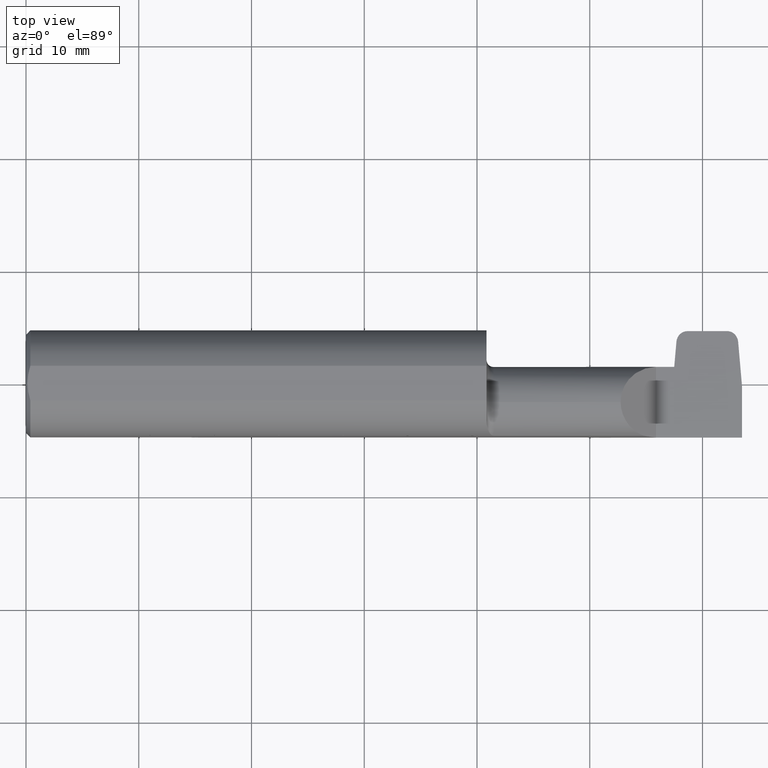
[diagram: clean part render]
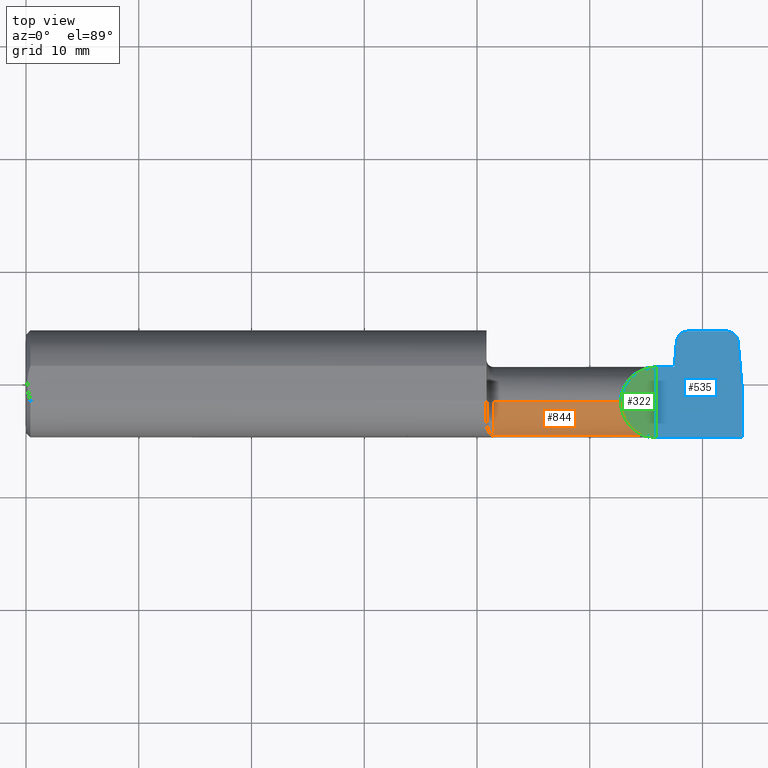
[diagram: same view with three faces highlighted in distinct colors, each labeled with its STEP entity id]
A machine part, top view with three faces highlighted in distinct colors.
Their STEP definitions:

[orange] entity #844 — the highlighted cylindrical surface (edge-blend (fillet) strip) has radius 3.175 mm, axis along (-1, -0, -0).
#13 = DIRECTION ( 'NONE',  ( -1.000000000000000000, -0.000000000000000000, -0.000000000000000000 ) ) ;
#14 = DIRECTION ( 'NONE',  ( 1.000000000000000000, 0.000000000000000000, 0.000000000000000000 ) ) ;
#79 = EDGE_CURVE ( 'NONE', #342, #532, #719, .T. ) ;
#118 = AXIS2_PLACEMENT_3D ( 'NONE', #388, #848, #161 ) ;
#125 = DIRECTION ( 'NONE',  ( 0.000000000000000000, 0.000000000000000000, -1.000000000000000000 ) ) ;
#144 = EDGE_CURVE ( 'NONE', #336, #214, #546, .T. ) ;
#159 = AXIS2_PLACEMENT_3D ( 'NONE', #596, #441, #125 ) ;
#161 = DIRECTION ( 'NONE',  ( 0.000000000000000000, 0.000000000000000000, 1.000000000000000000 ) ) ;
#214 = VERTEX_POINT ( 'NONE', #613 ) ;
#229 = FACE_OUTER_BOUND ( 'NONE', #621, .T. ) ;
#257 = CARTESIAN_POINT ( 'NONE',  ( 1.607999999999999874, -0.06535000000000003306, 0.1249999999999999584 ) ) ;
#326 = ORIENTED_EDGE ( 'NONE', *, *, #79, .T. ) ;
#336 = VERTEX_POINT ( 'NONE', #399 ) ;
#342 = VERTEX_POINT ( 'NONE', #484 ) ;
#351 = CARTESIAN_POINT ( 'NONE',  ( 1.632999999999999785, -0.1816805279265493456, 0.04574066322573741572 ) ) ;
#354 = ORIENTED_EDGE ( 'NONE', *, *, #891, .T. ) ;
#369 = EDGE_CURVE ( 'NONE', #532, #214, #401, .T. ) ;
#387 = CARTESIAN_POINT ( 'NONE',  ( 2.106227264736975080, -0.1622637096011580737, 0.09512273526302454651 ) ) ;
#388 = CARTESIAN_POINT ( 'NONE',  ( 1.607999999999999874, -0.06535000000000003306, 0.000000000000000000 ) ) ;
#389 = ORIENTED_EDGE ( 'NONE', *, *, #144, .F. ) ;
#399 = CARTESIAN_POINT ( 'NONE',  ( 2.076349999999999252, -0.06535000000000003306, 0.1249999999999999584 ) ) ;
#401 = LINE ( 'NONE', #712, #880 ) ;
#441 = DIRECTION ( 'NONE',  ( 1.000000000000000000, 0.000000000000000000, 0.000000000000000000 ) ) ;
#475 = VECTOR ( 'NONE', #13, 39.37007874015748143 ) ;
#484 = CARTESIAN_POINT ( 'NONE',  ( 1.632999999999999785, -0.06535000000000003306, 0.1249999999999999584 ) ) ;
#490 = LINE ( 'NONE', #257, #475 ) ;
#532 = VERTEX_POINT ( 'NONE', #351 ) ;
#537 = CYLINDRICAL_SURFACE ( 'NONE', #118, 0.1249999999999999584 ) ;
#546 =( BOUNDED_CURVE ( )  B_SPLINE_CURVE ( 3, ( #841, #923, #387, #680 ),
 .UNSPECIFIED., .F., .T. ) 
 B_SPLINE_CURVE_WITH_KNOTS ( ( 4, 4 ),
 ( 0.000000000000000000, 1.196169454089148321 ),
 .UNSPECIFIED. ) 
 CURVE ( )  GEOMETRIC_REPRESENTATION_ITEM ( )  RATIONAL_B_SPLINE_CURVE ( ( 1.000000000000000000, 0.8842770299537372480, 0.8842770299537372480, 1.000000000000000000 ) ) 
 REPRESENTATION_ITEM ( '' )  );
#547 = ORIENTED_EDGE ( 'NONE', *, *, #369, .T. ) ;
#596 = CARTESIAN_POINT ( 'NONE',  ( 1.632999999999999785, -0.06535000000000003306, 0.000000000000000000 ) ) ;
#613 = CARTESIAN_POINT ( 'NONE',  ( 2.155609336774261919, -0.1816805279265492068, 0.04574066322573761001 ) ) ;
#621 = EDGE_LOOP ( 'NONE', ( #389, #354, #326, #547 ) ) ;
#680 = CARTESIAN_POINT ( 'NONE',  ( 2.155609336774261919, -0.1816805279265492068, 0.04574066322573761001 ) ) ;
#712 = CARTESIAN_POINT ( 'NONE',  ( 1.935500000000000220, -0.1816805279265493456, 0.04574066322573741572 ) ) ;
#719 = CIRCLE ( 'NONE', #159, 0.1249999999999999584 ) ;
#841 = CARTESIAN_POINT ( 'NONE',  ( 2.076349999999999252, -0.06535000000000003306, 0.1249999999999999584 ) ) ;
#844 = ADVANCED_FACE ( 'NONE', ( #229 ), #537, .T. ) ;
#848 = DIRECTION ( 'NONE',  ( -1.000000000000000000, -0.000000000000000000, -0.000000000000000000 ) ) ;
#880 = VECTOR ( 'NONE', #14, 39.37007874015748143 ) ;
#891 = EDGE_CURVE ( 'NONE', #336, #342, #490, .T. ) ;
#923 = CARTESIAN_POINT ( 'NONE',  ( 2.076349999999999252, -0.1184122452651323182, 0.1250000000000000000 ) ) ;

[blue] entity #535 — the highlighted planar face has unit normal (-0, 0, -1).
#4 = EDGE_CURVE ( 'NONE', #607, #44, #817, .T. ) ;
#15 = VERTEX_POINT ( 'NONE', #669 ) ;
#19 = VECTOR ( 'NONE', #232, 39.37007874015748143 ) ;
#44 = VERTEX_POINT ( 'NONE', #204 ) ;
#45 = DIRECTION ( 'NONE',  ( -0.000000000000000000, 0.000000000000000000, -1.000000000000000000 ) ) ;
#57 = CARTESIAN_POINT ( 'NONE',  ( 2.447774584507903306, 0.1846500000000000086, -3.979970649922726459E-17 ) ) ;
#67 = CARTESIAN_POINT ( 'NONE',  ( 2.262441070989336112, 0.05964999999999992530, 0.000000000000000000 ) ) ;
#84 = CARTESIAN_POINT ( 'NONE',  ( 2.447774584507903306, 0.1846500000000000086, -3.979970649922726459E-17 ) ) ;
#88 =( BOUNDED_CURVE ( )  B_SPLINE_CURVE ( 3, ( #729, #211, #983, #127 ),
 .UNSPECIFIED., .F., .F. ) 
 B_SPLINE_CURVE_WITH_KNOTS ( ( 4, 4 ),
 ( 6.013479987146139294, 7.464055041535657686 ),
 .UNSPECIFIED. ) 
 CURVE ( )  GEOMETRIC_REPRESENTATION_ITEM ( )  RATIONAL_B_SPLINE_CURVE ( ( 1.000000000000000000, 0.8322058143701920319, 0.8322058143701920319, 1.000000000000000000 ) ) 
 REPRESENTATION_ITEM ( '' )  );
#102 = EDGE_CURVE ( 'NONE', #207, #642, #823, .T. ) ;
#114 = VERTEX_POINT ( 'NONE', #221 ) ;
#119 = CARTESIAN_POINT ( 'NONE',  ( 2.263441070989336446, 0.05964999999999993918, 0.000000000000000000 ) ) ;
#127 = CARTESIAN_POINT ( 'NONE',  ( 2.271138819222131566, 0.1476356649143464872, 0.000000000000000000 ) ) ;
#163 = CARTESIAN_POINT ( 'NONE',  ( 2.200000000000000178, 0.05964999999999993918, -3.979970649922726459E-17 ) ) ;
#169 = AXIS2_PLACEMENT_3D ( 'NONE', #277, #45, #202 ) ;
#171 = VECTOR ( 'NONE', #884, 39.37007874015748143 ) ;
#187 = EDGE_LOOP ( 'NONE', ( #925, #779, #509, #957, #433, #752, #730, #722, #624, #794 ) ) ;
#189 = DIRECTION ( 'NONE',  ( -0.000000000000000000, 1.000000000000000000, -0.000000000000000000 ) ) ;
#202 = DIRECTION ( 'NONE',  ( -1.000000000000000000, 0.000000000000000000, 0.000000000000000000 ) ) ;
#204 = CARTESIAN_POINT ( 'NONE',  ( 2.271138819222131566, 0.1476356649143464872, 0.000000000000000000 ) ) ;
#207 = VERTEX_POINT ( 'NONE', #57 ) ;
#208 = CARTESIAN_POINT ( 'NONE',  ( 2.200000000000000178, 0.2000000000000000111, -3.979970649922726459E-17 ) ) ;
#211 = CARTESIAN_POINT ( 'NONE',  ( 2.288637476239534951, 0.1846499999999999808, -3.414809992080329023E-17 ) ) ;
#221 = CARTESIAN_POINT ( 'NONE',  ( 2.262441070989336112, 0.05964999999999992530, 0.000000000000000000 ) ) ;
#222 = VECTOR ( 'NONE', #781, 39.37007874015748854 ) ;
#232 = DIRECTION ( 'NONE',  ( 1.000000000000000000, 8.537024980200214395E-15, 0.000000000000000000 ) ) ;
#233 = LINE ( 'NONE', #927, #222 ) ;
#242 = CARTESIAN_POINT ( 'NONE',  ( 2.500000000000000000, -0.1873499999999999610, -3.979970649922724610E-17 ) ) ;
#246 = EDGE_CURVE ( 'NONE', #114, #607, #457, .T. ) ;
#256 = VERTEX_POINT ( 'NONE', #851 ) ;
#277 = CARTESIAN_POINT ( 'NONE',  ( 2.200000000000000178, 0.2000000000000000111, -3.979970649922726459E-17 ) ) ;
#281 = DIRECTION ( 'NONE',  ( -0.000000000000000000, 1.000000000000000000, -0.000000000000000000 ) ) ;
#291 = EDGE_CURVE ( 'NONE', #845, #373, #800, .T. ) ;
#313 = VERTEX_POINT ( 'NONE', #163 ) ;
#323 = EDGE_CURVE ( 'NONE', #256, #207, #760, .T. ) ;
#325 = CARTESIAN_POINT ( 'NONE',  ( 2.200000000000000178, -0.1873499999999999888, -3.979970649922726459E-17 ) ) ;
#373 = VERTEX_POINT ( 'NONE', #325 ) ;
#397 = EDGE_CURVE ( 'NONE', #373, #313, #583, .T. ) ;
#415 = DIRECTION ( 'NONE',  ( -1.000000000000000000, 0.000000000000000000, 0.000000000000000000 ) ) ;
#433 = ORIENTED_EDGE ( 'NONE', *, *, #711, .F. ) ;
#457 = LINE ( 'NONE', #67, #19 ) ;
#462 = VECTOR ( 'NONE', #189, 39.37007874015748143 ) ;
#508 = CARTESIAN_POINT ( 'NONE',  ( 1.607999999999999874, 0.05964999999999991837, -3.979970649922724610E-17 ) ) ;
#509 = ORIENTED_EDGE ( 'NONE', *, *, #4, .F. ) ;
#515 = LINE ( 'NONE', #508, #819 ) ;
#521 = CARTESIAN_POINT ( 'NONE',  ( 2.263441070989336446, 0.05964999999999993918, 0.000000000000000000 ) ) ;
#535 = ADVANCED_FACE ( 'NONE', ( #664 ), #974, .F. ) ;
#572 = LINE ( 'NONE', #898, #462 ) ;
#583 = LINE ( 'NONE', #208, #593 ) ;
#591 = DIRECTION ( 'NONE',  ( 1.000000000000000000, 0.000000000000000000, 0.000000000000000000 ) ) ;
#593 = VECTOR ( 'NONE', #281, 39.37007874015748143 ) ;
#607 = VERTEX_POINT ( 'NONE', #521 ) ;
#624 = ORIENTED_EDGE ( 'NONE', *, *, #762, .F. ) ;
#629 = CARTESIAN_POINT ( 'NONE',  ( 2.484674242804016053, 0.1698242063295300752, -3.414809992080329023E-17 ) ) ;
#642 = VERTEX_POINT ( 'NONE', #904 ) ;
#656 = VECTOR ( 'NONE', #415, 39.37007874015748143 ) ;
#664 = FACE_OUTER_BOUND ( 'NONE', #187, .T. ) ;
#669 = CARTESIAN_POINT ( 'NONE',  ( 2.500000000000000000, -0.005350000000000019670, 0.000000000000000000 ) ) ;
#681 = EDGE_CURVE ( 'NONE', #642, #44, #88, .T. ) ;
#707 = CARTESIAN_POINT ( 'NONE',  ( 2.486615488638019844, 0.1476356649143465150, 0.000000000000000000 ) ) ;
#711 = EDGE_CURVE ( 'NONE', #313, #114, #515, .T. ) ;
#722 = ORIENTED_EDGE ( 'NONE', *, *, #755, .T. ) ;
#729 = CARTESIAN_POINT ( 'NONE',  ( 2.309979723352248548, 0.1846500000000000086, -3.979970649922726459E-17 ) ) ;
#730 = ORIENTED_EDGE ( 'NONE', *, *, #291, .F. ) ;
#752 = ORIENTED_EDGE ( 'NONE', *, *, #397, .F. ) ;
#755 = EDGE_CURVE ( 'NONE', #845, #15, #572, .T. ) ;
#760 =( BOUNDED_CURVE ( )  B_SPLINE_CURVE ( 3, ( #707, #629, #786, #84 ),
 .UNSPECIFIED., .F., .F. ) 
 B_SPLINE_CURVE_WITH_KNOTS ( ( 4, 4 ),
 ( 1.960722919233722328, 3.411297973623239166 ),
 .UNSPECIFIED. ) 
 CURVE ( )  GEOMETRIC_REPRESENTATION_ITEM ( )  RATIONAL_B_SPLINE_CURVE ( ( 1.000000000000000000, 0.8322058143701923649, 0.8322058143701923649, 1.000000000000000000 ) ) 
 REPRESENTATION_ITEM ( '' )  );
#762 = EDGE_CURVE ( 'NONE', #256, #15, #233, .T. ) ;
#779 = ORIENTED_EDGE ( 'NONE', *, *, #681, .T. ) ;
#781 = DIRECTION ( 'NONE',  ( 0.08715574274765187923, -0.9961946980917459893, 0.000000000000000000 ) ) ;
#786 = CARTESIAN_POINT ( 'NONE',  ( 2.469116831620616903, 0.1846499999999999808, -3.414809992080329023E-17 ) ) ;
#794 = ORIENTED_EDGE ( 'NONE', *, *, #323, .T. ) ;
#800 = LINE ( 'NONE', #242, #984 ) ;
#817 = LINE ( 'NONE', #119, #171 ) ;
#819 = VECTOR ( 'NONE', #591, 39.37007874015748143 ) ;
#823 = LINE ( 'NONE', #907, #656 ) ;
#845 = VERTEX_POINT ( 'NONE', #924 ) ;
#851 = CARTESIAN_POINT ( 'NONE',  ( 2.486615488638019844, 0.1476356649143465150, 0.000000000000000000 ) ) ;
#872 = DIRECTION ( 'NONE',  ( -1.000000000000000000, -0.000000000000000000, -0.000000000000000000 ) ) ;
#884 = DIRECTION ( 'NONE',  ( 0.08715574274765035268, 0.9961946980917462113, 0.000000000000000000 ) ) ;
#898 = CARTESIAN_POINT ( 'NONE',  ( 2.500000000000000000, 0.2000000000000000111, -3.979970649922726459E-17 ) ) ;
#904 = CARTESIAN_POINT ( 'NONE',  ( 2.309979723352248548, 0.1846500000000000086, -3.979970649922726459E-17 ) ) ;
#907 = CARTESIAN_POINT ( 'NONE',  ( 2.200000000000000178, 0.1846500000000000086, -3.979970649922726459E-17 ) ) ;
#924 = CARTESIAN_POINT ( 'NONE',  ( 2.500000000000000000, -0.1873500000000000165, -3.979970649922726459E-17 ) ) ;
#925 = ORIENTED_EDGE ( 'NONE', *, *, #102, .T. ) ;
#927 = CARTESIAN_POINT ( 'NONE',  ( 2.483377153930075742, 0.1846499999999999808, 0.000000000000000000 ) ) ;
#957 = ORIENTED_EDGE ( 'NONE', *, *, #246, .F. ) ;
#974 = PLANE ( 'NONE',  #169 ) ;
#983 = CARTESIAN_POINT ( 'NONE',  ( 2.273080065056135357, 0.1698242063295300475, -3.414809992080329023E-17 ) ) ;
#984 = VECTOR ( 'NONE', #872, 39.37007874015748143 ) ;

[green] entity #322 — the highlighted planar face has unit normal (-0.7071, 0, -0.7071).
#18 = DIRECTION ( 'NONE',  ( -0.7071067811865481278, 0.000000000000000000, -0.7071067811865470176 ) ) ;
#46 = ORIENTED_EDGE ( 'NONE', *, *, #864, .T. ) ;
#58 = CARTESIAN_POINT ( 'NONE',  ( 2.155609336774261919, -0.1816805279265492068, 0.04574066322573761001 ) ) ;
#75 = ORIENTED_EDGE ( 'NONE', *, *, #478, .F. ) ;
#81 = CARTESIAN_POINT ( 'NONE',  ( 2.023999999999999577, 0.1000000000000000056, 0.1773499999999999799 ) ) ;
#86 = PLANE ( 'NONE',  #96 ) ;
#96 = AXIS2_PLACEMENT_3D ( 'NONE', #81, #18, #177 ) ;
#129 =( BOUNDED_CURVE ( )  B_SPLINE_CURVE ( 3, ( #237, #215, #759, #58 ),
 .UNSPECIFIED., .F., .T. ) 
 B_SPLINE_CURVE_WITH_KNOTS ( ( 4, 4 ),
 ( 4.719594807355369959, 4.959027430676237636 ),
 .UNSPECIFIED. ) 
 CURVE ( )  GEOMETRIC_REPRESENTATION_ITEM ( )  RATIONAL_B_SPLINE_CURVE ( ( 1.000000000000000000, 0.9952283712403751093, 0.9952283712403751093, 1.000000000000000000 ) ) 
 REPRESENTATION_ITEM ( '' )  );
#144 = EDGE_CURVE ( 'NONE', #336, #214, #546, .T. ) ;
#177 = DIRECTION ( 'NONE',  ( -0.7071067811865469066, 0.000000000000000000, 0.7071067811865480168 ) ) ;
#199 = CARTESIAN_POINT ( 'NONE',  ( 2.200000000000000178, -0.1873451360457484560, 0.001349999999999087824 ) ) ;
#214 = VERTEX_POINT ( 'NONE', #613 ) ;
#215 = CARTESIAN_POINT ( 'NONE',  ( 2.185011993843769318, -0.1872371331974334585, 0.01633800615622983676 ) ) ;
#237 = CARTESIAN_POINT ( 'NONE',  ( 2.200000000000000178, -0.1873451360457484560, 0.001349999999999087824 ) ) ;
#271 = EDGE_LOOP ( 'NONE', ( #75, #46, #616, #871 ) ) ;
#273 = VERTEX_POINT ( 'NONE', #783 ) ;
#322 = ADVANCED_FACE ( 'NONE', ( #470 ), #86, .F. ) ;
#336 = VERTEX_POINT ( 'NONE', #399 ) ;
#338 = LINE ( 'NONE', #420, #866 ) ;
#384 = CARTESIAN_POINT ( 'NONE',  ( 2.200000000000000178, 0.05964270978741119389, 0.001349999999999188004 ) ) ;
#387 = CARTESIAN_POINT ( 'NONE',  ( 2.106227264736975080, -0.1622637096011580737, 0.09512273526302454651 ) ) ;
#399 = CARTESIAN_POINT ( 'NONE',  ( 2.076349999999999252, -0.06535000000000003306, 0.1249999999999999584 ) ) ;
#420 = CARTESIAN_POINT ( 'NONE',  ( 2.200000000000000178, 0.2000000000000000111, 0.001349999999999188004 ) ) ;
#470 = FACE_OUTER_BOUND ( 'NONE', #271, .T. ) ;
#478 = EDGE_CURVE ( 'NONE', #273, #717, #338, .T. ) ;
#546 =( BOUNDED_CURVE ( )  B_SPLINE_CURVE ( 3, ( #841, #923, #387, #680 ),
 .UNSPECIFIED., .F., .T. ) 
 B_SPLINE_CURVE_WITH_KNOTS ( ( 4, 4 ),
 ( 0.000000000000000000, 1.196169454089148321 ),
 .UNSPECIFIED. ) 
 CURVE ( )  GEOMETRIC_REPRESENTATION_ITEM ( )  RATIONAL_B_SPLINE_CURVE ( ( 1.000000000000000000, 0.8842770299537372480, 0.8842770299537372480, 1.000000000000000000 ) ) 
 REPRESENTATION_ITEM ( '' )  );
#613 = CARTESIAN_POINT ( 'NONE',  ( 2.155609336774261919, -0.1816805279265492068, 0.04574066322573761001 ) ) ;
#616 = ORIENTED_EDGE ( 'NONE', *, *, #144, .T. ) ;
#619 = CARTESIAN_POINT ( 'NONE',  ( 2.076349999999999252, -0.06535000000000003306, 0.1249999999999999584 ) ) ;
#620 =( BOUNDED_CURVE ( )  B_SPLINE_CURVE ( 3, ( #384, #843, #1004, #619 ),
 .UNSPECIFIED., .F., .T. ) 
 B_SPLINE_CURVE_WITH_KNOTS ( ( 4, 4 ),
 ( 4.723189190347703459, 6.283185307179586232 ),
 .UNSPECIFIED. ) 
 CURVE ( )  GEOMETRIC_REPRESENTATION_ITEM ( )  RATIONAL_B_SPLINE_CURVE ( ( 1.000000000000000000, 0.8072766023246975564, 0.8072766023246975564, 1.000000000000000000 ) ) 
 REPRESENTATION_ITEM ( '' )  );
#680 = CARTESIAN_POINT ( 'NONE',  ( 2.155609336774261919, -0.1816805279265492068, 0.04574066322573761001 ) ) ;
#717 = VERTEX_POINT ( 'NONE', #199 ) ;
#759 = CARTESIAN_POINT ( 'NONE',  ( 2.170144162329409543, -0.1853398774911412805, 0.03120583767058981300 ) ) ;
#783 = CARTESIAN_POINT ( 'NONE',  ( 2.200000000000000178, 0.05964270978741119389, 0.001349999999999188004 ) ) ;
#813 = EDGE_CURVE ( 'NONE', #717, #214, #129, .T. ) ;
#816 = DIRECTION ( 'NONE',  ( 0.000000000000000000, -1.000000000000000000, 0.000000000000000000 ) ) ;
#841 = CARTESIAN_POINT ( 'NONE',  ( 2.076349999999999252, -0.06535000000000003306, 0.1249999999999999584 ) ) ;
#843 = CARTESIAN_POINT ( 'NONE',  ( 2.127406436601748663, 0.05885865357521880004, 0.07394356339825010338 ) ) ;
#864 = EDGE_CURVE ( 'NONE', #273, #336, #620, .T. ) ;
#866 = VECTOR ( 'NONE', #816, 39.37007874015748143 ) ;
#871 = ORIENTED_EDGE ( 'NONE', *, *, #813, .F. ) ;
#923 = CARTESIAN_POINT ( 'NONE',  ( 2.076349999999999252, -0.1184122452651323182, 0.1250000000000000000 ) ) ;
#1004 = CARTESIAN_POINT ( 'NONE',  ( 2.076349999999999696, 0.007247797425264624997, 0.1250000000000000000 ) ) ;